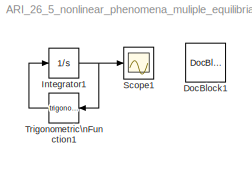
MODEL ARI_26_5_nonlinear_phenomena_muliple_equilibria
KIND model
BLOCK [Reference] DocBlock1  REF=simulink/Model-Wide\nUtilities/DocBlock
  DocumentType = Text
  Ports = []
  SID = 10
  SourceBlock = simulink/Model-Wide\nUtilities/DocBlock
  SourceType = DocBlock
  UserData = DataTag0
  UserDataPersistent = on
BLOCK [Integrator] Integrator1
  InitialCondition = (-16:1:16)*pi/4
  Ports = [1, 1]
  SID = 4
BLOCK [Scope] Scope1
  DataFormat = StructureWithTime
  Floating = off
  NumInputPorts = 1
  Ports = [1]
  SID = 5
  SampleTime = 0
  SaveName = ScopeData1
BLOCK [Trigonometry] Trigonometric\nFunction1
  Ports = [1, 1]
  SID = 6
NET Integrator1:1 -> Scope1:1, Trigonometric\nFunction1:1
LINE Trigonometric\nFunction1:1 -> Integrator1:1
note: NET lines group one-source signal fan-out (src -> all destinations, sorted); 1:1 wires keep LINE
